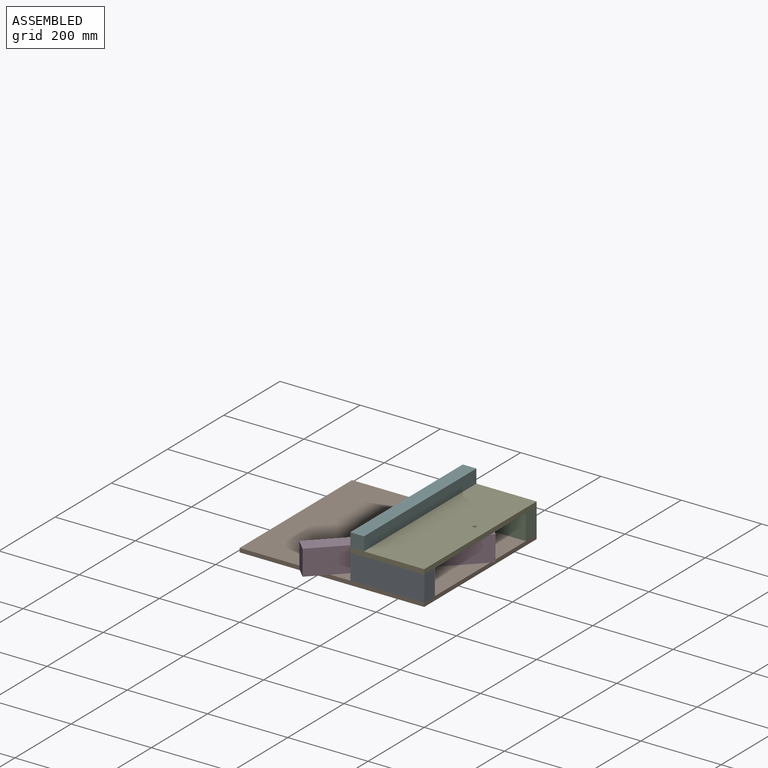
[diagram: assembled view]
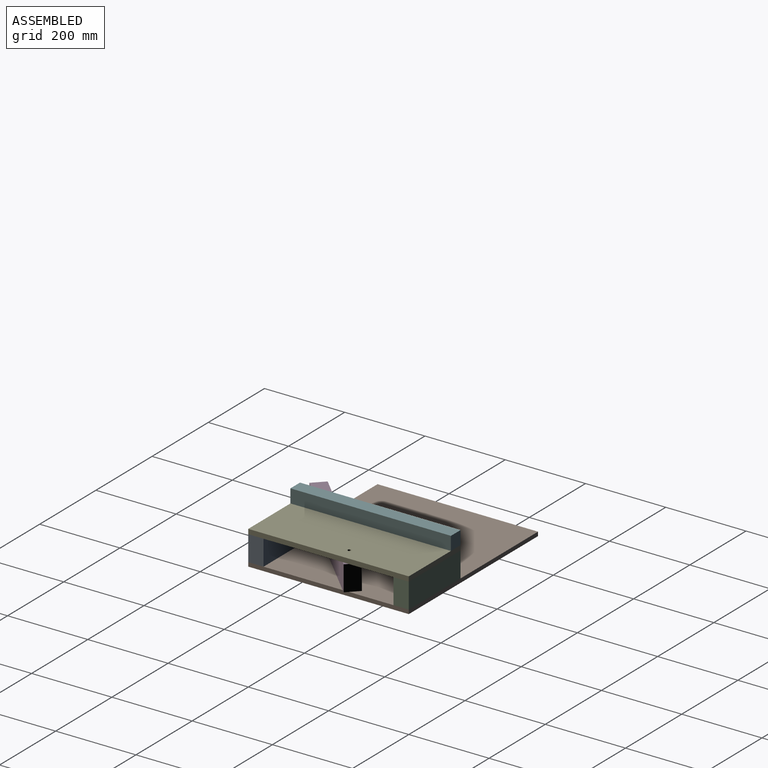
[diagram: assembled view, second angle]
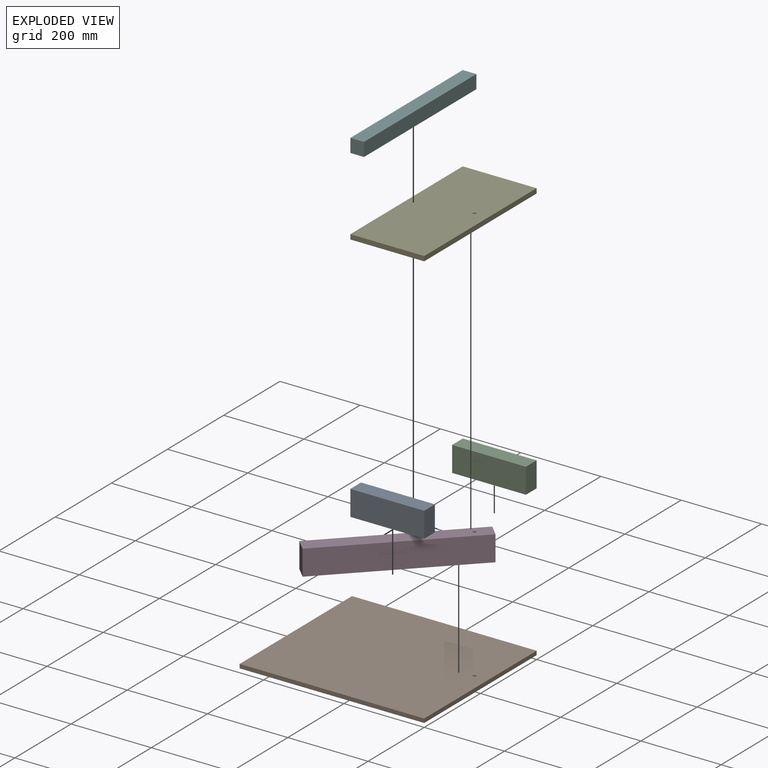
[diagram: exploded view]
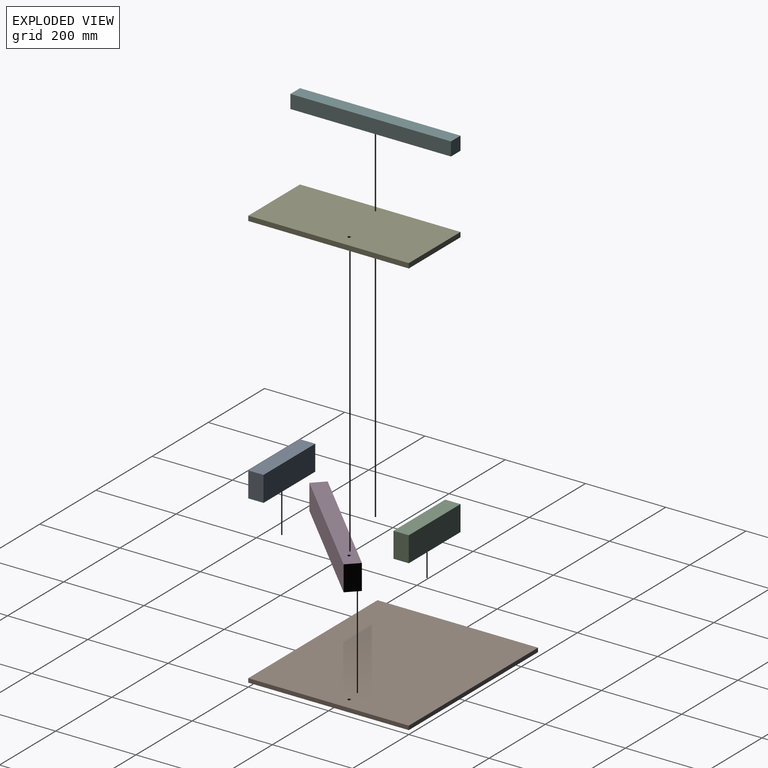
[diagram: exploded view, second angle]
ASSEMBLY  parts=6 mates=5
PART A: 6 faces, bbox 184x38x63 mm
  f0: plane 63x38mm, normal (1,0,0), area 2394mm2, adj f1,f3,f4,f5
  f1: plane 184x63mm, normal (0,1,0), area 11592mm2, adj f0,f2,f4,f5
  f2: plane 63x38mm, normal (-1,0,0), area 2394mm2, adj f1,f3,f4,f5
  f3: plane 184x63mm, normal (0,-1,0), area 11592mm2, adj f0,f2,f4,f5
  f4: plane 184x38mm, normal (0,0,1), area 6992mm2, adj f0,f1,f2,f3
  f5: plane 184x38mm, normal (0,0,-1), area 6992mm2, adj f0,f1,f2,f3
PART B: 7 faces, bbox 460x400x10 mm
  f0: plane 400x10mm, normal (1,0,0), area 4000mm2, adj f1,f3,f4,f5
  f1: plane 460x10mm, normal (0,1,0), area 4600mm2, adj f0,f2,f4,f5
  f2: plane 400x10mm, normal (-1,0,0), area 4000mm2, adj f1,f3,f4,f5
  f3: plane 460x10mm, normal (0,-1,0), area 4600mm2, adj f0,f2,f4,f5
  f4: plane 460x400mm, normal (0,0,1), area 183949.7mm2, adj f0,f1,f2,f3,f6
  f5: plane 460x400mm, normal (0,0,-1), area 183949.7mm2, adj f0,f1,f2,f3,f6
  f6: cylinder r=4mm len=10mm, axis (0,0,1), area 251.3mm2, adj f4,f5
PART C: 6 faces, bbox 184x38x63 mm
  f0: plane 184x63mm, normal (0,-1,0), area 11592mm2, adj f1,f3,f4,f5
  f1: plane 63x38mm, normal (1,0,0), area 2394mm2, adj f0,f2,f4,f5
  f2: plane 184x63mm, normal (0,1,0), area 11592mm2, adj f1,f3,f4,f5
  f3: plane 63x38mm, normal (-1,0,0), area 2394mm2, adj f0,f2,f4,f5
  f4: plane 184x38mm, normal (0,0,1), area 6992mm2, adj f0,f1,f2,f3
  f5: plane 184x38mm, normal (0,0,-1), area 6992mm2, adj f0,f1,f2,f3
PART D: 7 faces, bbox 38x400x63 mm
  f0: plane 400x63mm, normal (-1,0,0), area 25200mm2, adj f1,f3,f4,f5
  f1: plane 400x38mm, normal (0,0,-1), area 15149.7mm2, adj f0,f2,f4,f5,f6
  f2: plane 400x63mm, normal (1,0,0), area 25200mm2, adj f1,f3,f4,f5
  f3: plane 400x38mm, normal (0,0,1), area 15149.7mm2, adj f0,f2,f4,f5,f6
  f4: plane 63x38mm, normal (0,-1,0), area 2394mm2, adj f0,f1,f2,f3
  f5: plane 63x38mm, normal (0,1,0), area 2394mm2, adj f0,f1,f2,f3
  f6: cylinder r=4mm len=63mm, axis (0,0,1), area 1583.4mm2, adj f1,f3
PART E: 7 faces, bbox 184x400x12 mm
  f0: plane 400x12mm, normal (1,0,0), area 4800mm2, adj f1,f3,f4,f5
  f1: plane 184x12mm, normal (0,1,0), area 2208mm2, adj f0,f2,f4,f5
  f2: plane 400x12mm, normal (-1,0,0), area 4800mm2, adj f1,f3,f4,f5
  f3: plane 184x12mm, normal (0,-1,0), area 2208mm2, adj f0,f2,f4,f5
  f4: plane 400x184mm, normal (0,0,1), area 73549.7mm2, adj f0,f1,f2,f3,f6
  f5: plane 400x184mm, normal (0,0,-1), area 73549.7mm2, adj f0,f1,f2,f3,f6
  f6: cylinder r=4mm len=12mm, axis (0,0,1), area 301.6mm2, adj f4,f5
PART F: 6 faces, bbox 34x400x34 mm
  f0: plane 400x34mm, normal (1,0,0), area 13600mm2, adj f1,f3,f4,f5
  f1: plane 34x34mm, normal (0,1,0), area 1156mm2, adj f0,f2,f4,f5
  f2: plane 400x34mm, normal (-1,0,0), area 13600mm2, adj f1,f3,f4,f5
  f3: plane 34x34mm, normal (0,-1,0), area 1156mm2, adj f0,f2,f4,f5
  f4: plane 400x34mm, normal (0,0,1), area 13600mm2, adj f0,f1,f2,f3
  f5: plane 400x34mm, normal (0,0,-1), area 13600mm2, adj f0,f1,f2,f3
PLACE A at identity
PLACE B at identity
PLACE C at identity
PLACE D rot(axis=(0,0,-1),44.9deg) t=(-19.19,-130.27,10)mm
PLACE E at identity
PLACE F at identity
MATE fastened B.f4 <-> A.f5  axis (0,0,1) through (0,-400,10)mm
MATE fastened E.f5 <-> A.f4  axis (0,0,-1) through (0,-400,73)mm
MATE fastened C.f5 <-> B.f4  axis (0,0,-1) through (0,0,10)mm
MATE fastened E.f4 <-> F.f5  axis (0,0,1) through (-184,-400,85)mm
MATE revolute B.f6 <-> D.f6  axis (0,0,1) through (-34,-172,10)mm
